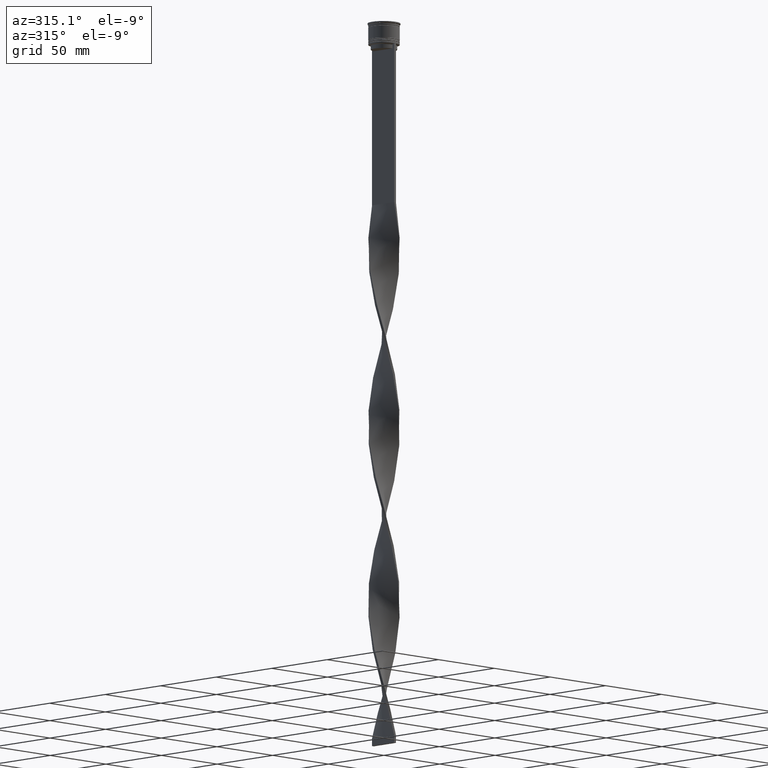
[diagram: clean part render]
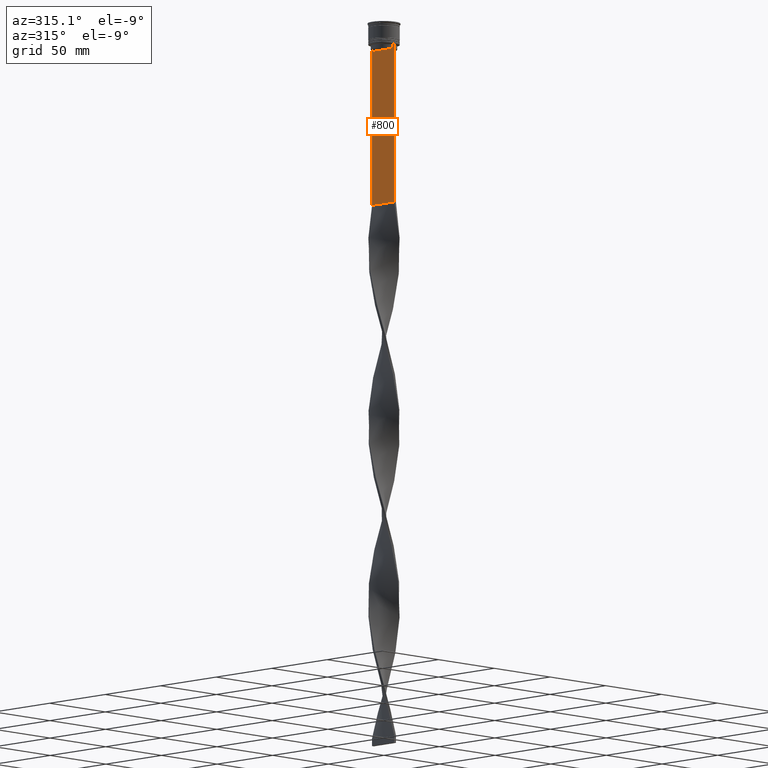
[diagram: same view with one face highlighted and labeled with its STEP entity id]
A machine part, auxiliary view. The second image highlights one B-rep face of the part: STEP entity #800.
In plain terms, the highlighted planar face has unit normal (-1, 0, 0).
Its self-contained STEP definition (entity closure, byte-faithful):
#116 = B_SPLINE_CURVE_WITH_KNOTS ( 'NONE', 3,
 ( #3973, #1292, #287, #2286 ),
 .UNSPECIFIED., .F., .F.,
 ( 4, 4 ),
 ( 0.03866293624047253963, 0.03937282246709321309 ),
 .UNSPECIFIED. ) ;
#287 = CARTESIAN_POINT ( 'NONE',  ( -0.7499999999999997780, -8.701063080777123204, -14.16668447713511547 ) ) ;
#300 = LINE ( 'NONE', #3032, #1770 ) ;
#326 = PLANE ( 'NONE',  #1351 ) ;
#348 = CARTESIAN_POINT ( 'NONE',  ( -0.7499999999999997780, -8.366450860430608927, -17.00000000000000000 ) ) ;
#471 = ORIENTED_EDGE ( 'NONE', *, *, #3047, .F. ) ;
#523 = VERTEX_POINT ( 'NONE', #1173 ) ;
#598 = CARTESIAN_POINT ( 'NONE',  ( -0.7499999999999997780, 8.868342573446296839, -14.00000000000000178 ) ) ;
#602 = DIRECTION ( 'NONE',  ( 0.000000000000000000, -1.000000000000000000, 0.000000000000000000 ) ) ;
#669 = CARTESIAN_POINT ( 'NONE',  ( -0.7499999999999997780, -10.00000000000000533, 6.056171120131581098 ) ) ;
#749 = EDGE_CURVE ( 'NONE', #901, #1576, #116, .T. ) ;
#750 = CARTESIAN_POINT ( 'NONE',  ( -0.7499999999999997780, -8.868342573446296839, -14.00000000000000178 ) ) ;
#751 = ORIENTED_EDGE ( 'NONE', *, *, #2244, .F. ) ;
#800 = ADVANCED_FACE ( 'NONE', ( #4021 ), #326, .T. ) ;
#901 = VERTEX_POINT ( 'NONE', #3444 ) ;
#909 = EDGE_LOOP ( 'NONE', ( #1357, #1548, #1908, #4031, #471, #2651, #1863, #751, #1933, #2634, #3880, #2113 ) ) ;
#975 = CARTESIAN_POINT ( 'NONE',  ( -0.7499999999999997780, 8.366450860430608927, -14.50000000000000000 ) ) ;
#990 = LINE ( 'NONE', #1303, #1757 ) ;
#1162 = CARTESIAN_POINT ( 'NONE',  ( -0.7499999999999997780, 8.366450860430608927, 0.000000000000000000 ) ) ;
#1173 = CARTESIAN_POINT ( 'NONE',  ( -0.7499999999999997780, -10.00000000000000533, -14.00000000000000178 ) ) ;
#1188 = VECTOR ( 'NONE', #2726, 1000.000000000000000 ) ;
#1265 = EDGE_CURVE ( 'NONE', #2301, #1946, #4024, .T. ) ;
#1273 = VECTOR ( 'NONE', #3563, 1000.000000000000000 ) ;
#1291 = LINE ( 'NONE', #1985, #3829 ) ;
#1292 = CARTESIAN_POINT ( 'NONE',  ( -0.7499999999999997780, -8.533766903463440912, -14.33335220807192201 ) ) ;
#1303 = CARTESIAN_POINT ( 'NONE',  ( -0.7499999999999997780, -8.366450860430608927, 0.000000000000000000 ) ) ;
#1322 = CARTESIAN_POINT ( 'NONE',  ( -0.7499999999999997780, 8.366450860430608927, -17.00000000000000000 ) ) ;
#1323 = EDGE_CURVE ( 'NONE', #2102, #2432, #3115, .T. ) ;
#1325 = DIRECTION ( 'NONE',  ( 0.000000000000000000, 1.000000000000000000, 0.000000000000000000 ) ) ;
#1337 = CARTESIAN_POINT ( 'NONE',  ( -0.7499999999999997780, 8.701063075415252257, -14.16668448247791723 ) ) ;
#1351 = AXIS2_PLACEMENT_3D ( 'NONE', #669, #1695, #3063 ) ;
#1357 = ORIENTED_EDGE ( 'NONE', *, *, #1323, .F. ) ;
#1411 = LINE ( 'NONE', #2781, #2352 ) ;
#1477 = VECTOR ( 'NONE', #3077, 1000.000000000000000 ) ;
#1548 = ORIENTED_EDGE ( 'NONE', *, *, #1784, .F. ) ;
#1576 = VERTEX_POINT ( 'NONE', #750 ) ;
#1611 = CARTESIAN_POINT ( 'NONE',  ( -0.7499999999999997780, 8.533766897779926808, -14.33335221373273782 ) ) ;
#1612 = VERTEX_POINT ( 'NONE', #2766 ) ;
#1658 = CARTESIAN_POINT ( 'NONE',  ( -0.7499999999999997780, -10.00000000000000533, -14.00000000000000178 ) ) ;
#1666 = LINE ( 'NONE', #3030, #3055 ) ;
#1692 = VERTEX_POINT ( 'NONE', #1322 ) ;
#1695 = DIRECTION ( 'NONE',  ( -1.000000000000000000, 0.000000000000000000, 0.000000000000000000 ) ) ;
#1757 = VECTOR ( 'NONE', #3373, 1000.000000000000000 ) ;
#1770 = VECTOR ( 'NONE', #1325, 1000.000000000000000 ) ;
#1779 = EDGE_CURVE ( 'NONE', #2480, #901, #990, .T. ) ;
#1784 = EDGE_CURVE ( 'NONE', #1946, #2102, #1666, .T. ) ;
#1786 = VERTEX_POINT ( 'NONE', #3724 ) ;
#1863 = ORIENTED_EDGE ( 'NONE', *, *, #4217, .F. ) ;
#1908 = ORIENTED_EDGE ( 'NONE', *, *, #1265, .F. ) ;
#1928 = CARTESIAN_POINT ( 'NONE',  ( -0.7499999999999997780, -10.00000000000000533, 6.056171120131581098 ) ) ;
#1933 = ORIENTED_EDGE ( 'NONE', *, *, #749, .F. ) ;
#1946 = VERTEX_POINT ( 'NONE', #3451 ) ;
#1975 = VERTEX_POINT ( 'NONE', #3934 ) ;
#1985 = CARTESIAN_POINT ( 'NONE',  ( -0.7499999999999997780, -10.00000000000000533, -14.00000000000000178 ) ) ;
#2026 = CARTESIAN_POINT ( 'NONE',  ( -0.7499999999999997780, -10.00000000000000533, -14.00000000000000178 ) ) ;
#2045 = LINE ( 'NONE', #2026, #4125 ) ;
#2102 = VERTEX_POINT ( 'NONE', #598 ) ;
#2113 = ORIENTED_EDGE ( 'NONE', *, *, #2854, .F. ) ;
#2244 = EDGE_CURVE ( 'NONE', #1576, #1786, #1291, .T. ) ;
#2286 = CARTESIAN_POINT ( 'NONE',  ( -0.7499999999999997780, -8.868342573446296839, -14.00000000000000178 ) ) ;
#2301 = VERTEX_POINT ( 'NONE', #2433 ) ;
#2341 = EDGE_CURVE ( 'NONE', #2301, #1975, #4100, .T. ) ;
#2352 = VECTOR ( 'NONE', #4138, 1000.000000000000000 ) ;
#2432 = VERTEX_POINT ( 'NONE', #975 ) ;
#2433 = CARTESIAN_POINT ( 'NONE',  ( -0.7499999999999997780, 9.999999999999998224, -14.00000000000000178 ) ) ;
#2480 = VERTEX_POINT ( 'NONE', #348 ) ;
#2634 = ORIENTED_EDGE ( 'NONE', *, *, #1779, .F. ) ;
#2651 = ORIENTED_EDGE ( 'NONE', *, *, #3274, .F. ) ;
#2682 = CARTESIAN_POINT ( 'NONE',  ( -0.7499999999999997780, 9.999999999999998224, 6.056171120131581098 ) ) ;
#2726 = DIRECTION ( 'NONE',  ( 0.000000000000000000, 0.000000000000000000, -1.000000000000000000 ) ) ;
#2758 = DIRECTION ( 'NONE',  ( 0.000000000000000000, -1.000000000000000000, 0.000000000000000000 ) ) ;
#2766 = CARTESIAN_POINT ( 'NONE',  ( -0.7499999999999998890, -10.00000000000000533, -116.0000000000000000 ) ) ;
#2781 = CARTESIAN_POINT ( 'NONE',  ( -0.7499999999999997780, 8.400000000000003908, -17.00000000000000000 ) ) ;
#2854 = EDGE_CURVE ( 'NONE', #2432, #1692, #4232, .T. ) ;
#3030 = CARTESIAN_POINT ( 'NONE',  ( -0.7499999999999997780, -10.00000000000000533, -14.00000000000000178 ) ) ;
#3032 = CARTESIAN_POINT ( 'NONE',  ( -0.7499999999999997780, -10.00000000000000533, -116.0000000000000000 ) ) ;
#3047 = EDGE_CURVE ( 'NONE', #1612, #1975, #300, .T. ) ;
#3055 = VECTOR ( 'NONE', #3631, 1000.000000000000000 ) ;
#3063 = DIRECTION ( 'NONE',  ( 0.000000000000000000, 0.000000000000000000, 1.000000000000000000 ) ) ;
#3077 = DIRECTION ( 'NONE',  ( 0.000000000000000000, 0.000000000000000000, -1.000000000000000000 ) ) ;
#3115 = B_SPLINE_CURVE_WITH_KNOTS ( 'NONE', 3,
 ( #3388, #1337, #1611, #4402 ),
 .UNSPECIFIED., .F., .F.,
 ( 4, 4 ),
 ( 0.01512225952876174867, 0.01583070519299695222 ),
 .UNSPECIFIED. ) ;
#3223 = EDGE_CURVE ( 'NONE', #1692, #2480, #1411, .T. ) ;
#3274 = EDGE_CURVE ( 'NONE', #523, #1612, #3959, .T. ) ;
#3373 = DIRECTION ( 'NONE',  ( -0.000000000000000000, -0.000000000000000000, 1.000000000000000000 ) ) ;
#3388 = CARTESIAN_POINT ( 'NONE',  ( -0.7499999999999997780, 8.868342573446296839, -14.00000000000000178 ) ) ;
#3444 = CARTESIAN_POINT ( 'NONE',  ( -0.7499999999999997780, -8.366450860430608927, -14.50000000000000000 ) ) ;
#3451 = CARTESIAN_POINT ( 'NONE',  ( -0.7499999999999997780, 9.871550030263740894, -14.00000000000000178 ) ) ;
#3563 = DIRECTION ( 'NONE',  ( 0.000000000000000000, 0.000000000000000000, -1.000000000000000000 ) ) ;
#3631 = DIRECTION ( 'NONE',  ( 0.000000000000000000, -1.000000000000000000, 0.000000000000000000 ) ) ;
#3724 = CARTESIAN_POINT ( 'NONE',  ( -0.7499999999999997780, -9.871550030263740894, -14.00000000000000178 ) ) ;
#3829 = VECTOR ( 'NONE', #4262, 1000.000000000000000 ) ;
#3880 = ORIENTED_EDGE ( 'NONE', *, *, #3223, .F. ) ;
#3934 = CARTESIAN_POINT ( 'NONE',  ( -0.7499999999999997780, 9.999999999999998224, -116.0000000000000000 ) ) ;
#3959 = LINE ( 'NONE', #1928, #1273 ) ;
#3973 = CARTESIAN_POINT ( 'NONE',  ( -0.7499999999999997780, -8.366450860430608927, -14.50000000000000000 ) ) ;
#3977 = VECTOR ( 'NONE', #602, 1000.000000000000000 ) ;
#4021 = FACE_OUTER_BOUND ( 'NONE', #909, .T. ) ;
#4024 = LINE ( 'NONE', #1658, #3977 ) ;
#4031 = ORIENTED_EDGE ( 'NONE', *, *, #2341, .T. ) ;
#4100 = LINE ( 'NONE', #2682, #1188 ) ;
#4125 = VECTOR ( 'NONE', #2758, 1000.000000000000000 ) ;
#4138 = DIRECTION ( 'NONE',  ( 0.000000000000000000, -1.000000000000000000, 0.000000000000000000 ) ) ;
#4217 = EDGE_CURVE ( 'NONE', #1786, #523, #2045, .T. ) ;
#4232 = LINE ( 'NONE', #1162, #1477 ) ;
#4262 = DIRECTION ( 'NONE',  ( 0.000000000000000000, -1.000000000000000000, 0.000000000000000000 ) ) ;
#4402 = CARTESIAN_POINT ( 'NONE',  ( -0.7499999999999997780, 8.366450860430608927, -14.50000000000000000 ) ) ;